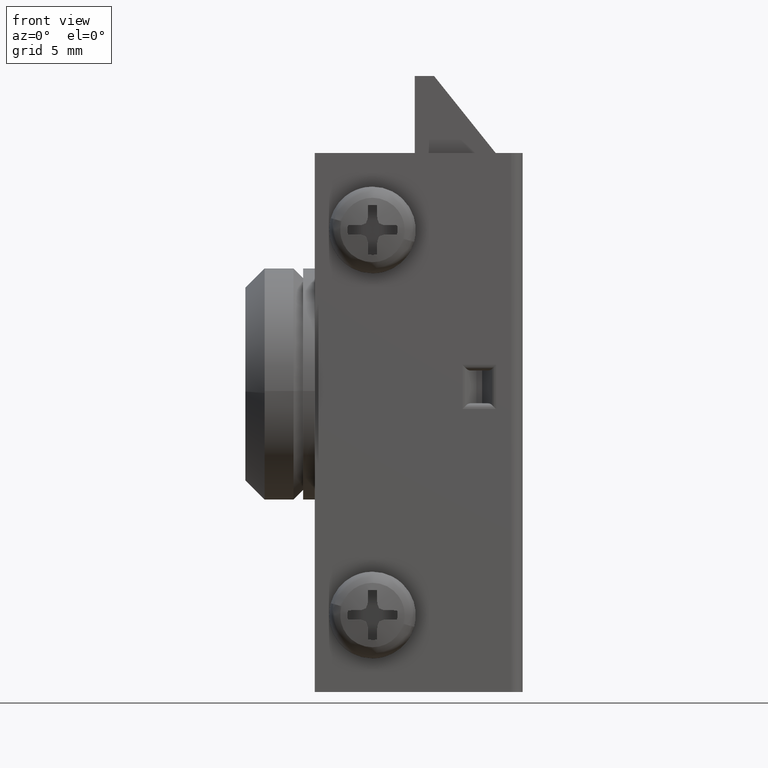
[diagram: clean part render]
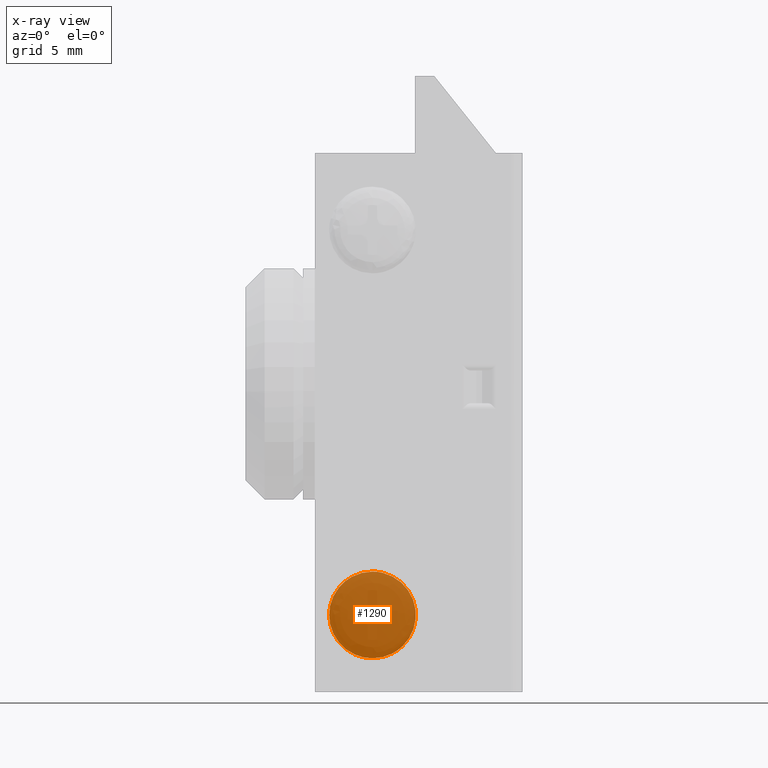
[diagram: x-ray — body ghosted, one internal face saturated and labeled with its STEP entity id]
A machine part, front view, then the same camera in x-ray: the body is ghosted and one INTERNAL B-rep face — a face not visible from any outside direction — is saturated and labeled: STEP entity #1290.
In plain terms, the highlighted face is a freeform B-spline surface patch.
Its self-contained STEP definition (entity closure, byte-faithful):
#115=CARTESIAN_POINT('',(-9.536142944958765,-5.600006000000091,22.568825950563198));
#116=VERTEX_POINT('',#115);
#122=CARTESIAN_POINT('',(-7.799986999999869,-5.600006000000090,21.749999999999890));
#123=VERTEX_POINT('',#122);
#124=CARTESIAN_POINT('',(-7.799986999999869,-5.600006000000090,21.749999999999890));
#125=CARTESIAN_POINT('',(-8.861157055958959,-5.600006000000090,21.749999999999883));
#126=CARTESIAN_POINT('',(-9.536142944958765,-5.600006000000091,22.568825950563202));
#134=(BOUNDED_CURVE()B_SPLINE_CURVE(2,(#124,#125,#126),.UNSPECIFIED.,.F.,.U.)B_SPLINE_CURVE_WITH_KNOTS((3,3),(0.500000000000000,0.639495502116279),.UNSPECIFIED.)CURVE()GEOMETRIC_REPRESENTATION_ITEM()RATIONAL_B_SPLINE_CURVE((1.0,0.836570853500657,0.855522753812200))REPRESENTATION_ITEM(''));
#135=EDGE_CURVE('',#123,#116,#134,.T.);
#137=CARTESIAN_POINT('',(-6.240694005453592,-5.600006000000089,25.622067194095219));
#138=VERTEX_POINT('',#137);
#139=CARTESIAN_POINT('',(-6.240694005453592,-5.600006000000088,25.622067194095216));
#140=CARTESIAN_POINT('',(-5.549986999999755,-5.600006000000090,24.958091782291380));
#141=CARTESIAN_POINT('',(-5.549986999999755,-5.600006000000090,24.0));
#142=CARTESIAN_POINT('',(-5.549986999999755,-5.600006000000091,21.749999999999886));
#143=CARTESIAN_POINT('',(-7.799986999999869,-5.600006000000090,21.749999999999890));
#151=(BOUNDED_CURVE()B_SPLINE_CURVE(2,(#139,#140,#141,#142,#143),.UNSPECIFIED.,.F.,.U.)B_SPLINE_CURVE_WITH_KNOTS((3,2,3),(0.122022967630972,0.250000000000000,0.500000000000000),.UNSPECIFIED.)CURVE()GEOMETRIC_REPRESENTATION_ITEM()RATIONAL_B_SPLINE_CURVE((0.853636457188277,0.850065580220968,1.0,0.707106781186548,1.0))REPRESENTATION_ITEM(''));
#152=EDGE_CURVE('',#138,#123,#151,.T.);
#196=CARTESIAN_POINT('',(-7.799986999999869,-5.600006000000090,26.250000000000110));
#197=VERTEX_POINT('',#196);
#198=CARTESIAN_POINT('',(-7.799986999999869,-5.600006000000090,26.250000000000110));
#199=CARTESIAN_POINT('',(-6.893905227062411,-5.600006000000091,26.250000000000110));
#200=CARTESIAN_POINT('',(-6.240694005453592,-5.600006000000089,25.622067194095223));
#208=(BOUNDED_CURVE()B_SPLINE_CURVE(2,(#198,#199,#200),.UNSPECIFIED.,.F.,.U.)B_SPLINE_CURVE_WITH_KNOTS((3,3),(0.0,0.122022967630972),.UNSPECIFIED.)CURVE()GEOMETRIC_REPRESENTATION_ITEM()RATIONAL_B_SPLINE_CURVE((1.0,0.857041200965579,0.853636457188277))REPRESENTATION_ITEM(''));
#209=EDGE_CURVE('',#197,#138,#208,.T.);
#211=CARTESIAN_POINT('',(-9.536142944958765,-5.600006000000091,22.568825950563202));
#212=CARTESIAN_POINT('',(-10.049986999999984,-5.600006000000090,23.192168529889187));
#213=CARTESIAN_POINT('',(-10.049986999999980,-5.600006000000090,24.0));
#214=CARTESIAN_POINT('',(-10.049986999999984,-5.600006000000091,26.250000000000110));
#215=CARTESIAN_POINT('',(-7.799986999999869,-5.600006000000090,26.250000000000110));
#223=(BOUNDED_CURVE()B_SPLINE_CURVE(2,(#211,#212,#213,#214,#215),.UNSPECIFIED.,.F.,.U.)B_SPLINE_CURVE_WITH_KNOTS((3,2,3),(0.639495502116279,0.750000000000000,1.0),.UNSPECIFIED.)CURVE()GEOMETRIC_REPRESENTATION_ITEM()RATIONAL_B_SPLINE_CURVE((0.855522753812200,0.870535927685891,1.0,0.707106781186548,1.0))REPRESENTATION_ITEM(''));
#224=EDGE_CURVE('',#116,#197,#223,.T.);
#1279=CARTESIAN_POINT('',(-10.274600924790860,-5.600006000000090,26.474774991278249));
#1280=CARTESIAN_POINT('',(-10.274600924790860,-5.600006000000091,21.525224888022340));
#1281=CARTESIAN_POINT('',(-5.325423205695373,-5.600006000000090,26.474774991278249));
#1282=CARTESIAN_POINT('',(-5.325423205695373,-5.600006000000091,21.525224888022340));
#1283=B_SPLINE_SURFACE_WITH_KNOTS('',1,1,((#1279,#1281),(#1280,#1282)),.UNSPECIFIED.,.F.,.F.,.U.,(2,2),(2,2),(0.0,4.949550103255909),(0.0,4.949177719095482),.UNSPECIFIED.);
#1284=ORIENTED_EDGE('',*,*,#209,.T.);
#1285=ORIENTED_EDGE('',*,*,#152,.T.);
#1286=ORIENTED_EDGE('',*,*,#135,.T.);
#1287=ORIENTED_EDGE('',*,*,#224,.T.);
#1288=EDGE_LOOP('',(#1284,#1285,#1286,#1287));
#1289=FACE_OUTER_BOUND('',#1288,.T.);
#1290=ADVANCED_FACE('',(#1289),#1283,.F.);